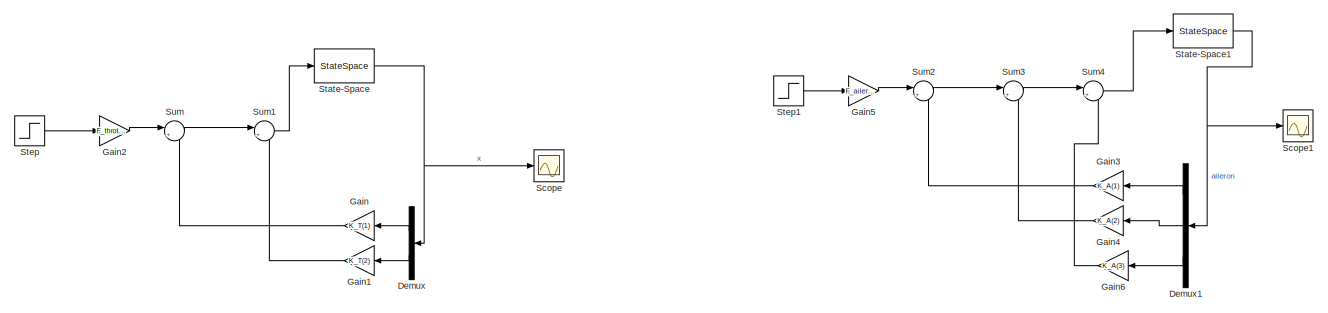
[diagram: root canvas - part 1/2, left side, full height]
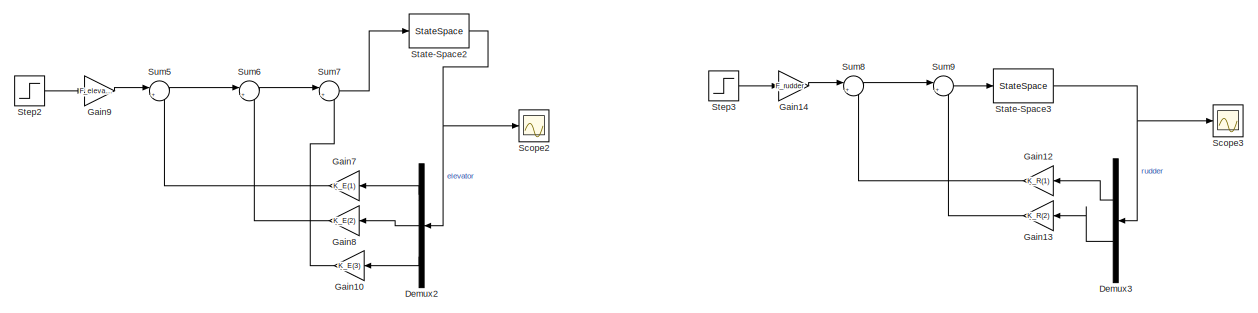
[diagram: root canvas - part 2/2, right side, full height]
MODEL slx_231699bf794b
KIND model
CONFIG AbsTol = auto
CONFIG EnableMultiTasking = off
CONFIG FixedStep = auto
CONFIG MaxStep = auto
CONFIG MinStep = auto
CONFIG RelTol = 1e-3
CONFIG SampleTimeConstraint = Unconstrained
CONFIG SolverName = VariableStepAuto
CONFIG StartTime = 0.0
CONFIG StopTime = 10.0
BLOCK [Demux] Demux
  Outputs = 2
  Ports = [1, 2]
BLOCK [Demux] Demux1
  Outputs = 3
  Ports = [1, 3]
BLOCK [Demux] Demux2
  Outputs = 3
  Ports = [1, 3]
BLOCK [Demux] Demux3
  Outputs = 2
  Ports = [1, 2]
BLOCK [Gain] Gain
  Gain = K_T(1)
BLOCK [Gain] Gain1
  Gain = K_T(2)
BLOCK [Gain] Gain10
  Gain = K_E(3)
BLOCK [Gain] Gain12
  Gain = K_R(1)
BLOCK [Gain] Gain13
  Gain = K_R(2)
BLOCK [Gain] Gain14
  Gain = F_rudder
BLOCK [Gain] Gain2
  Gain = F_throttle
BLOCK [Gain] Gain3
  Gain = K_A(1)
BLOCK [Gain] Gain4
  Gain = K_A(2)
BLOCK [Gain] Gain5
  Gain = F_aileron
BLOCK [Gain] Gain6
  Gain = K_A(3)
BLOCK [Gain] Gain7
  Gain = K_E(1)
BLOCK [Gain] Gain8
  Gain = K_E(2)
BLOCK [Gain] Gain9
  Gain = F_elevator
BLOCK [Scope] Scope
  Floating = off
  NumInputPorts = 1
  Ports = [1]
  ScopeSpecificationString = Simulink.scopes.TimeScopeBlockCfg('CurrentConfiguration', extmgr.ConfigurationSet(extmgr.Configuration('Core','General UI',true),extmgr.Configuration('Core','Source UI',true),extmgr.Configuration('Sources','WiredSimulink',true),extmgr.Configuration('Visuals','Time Domain',true,'SerializedDisplays',{struct('MinYLimReal','-0.12782','MaxYLimReal','1.15039','YLabelReal','','MinYLimMag','0.00000','MaxY...<+1358ch>
BLOCK [Scope] Scope1
  Floating = off
  NumInputPorts = 1
  Ports = [1]
  ScopeSpecificationString = Simulink.scopes.TimeScopeBlockCfg('CurrentConfiguration', extmgr.ConfigurationSet(extmgr.Configuration('Core','General UI',true),extmgr.Configuration('Core','Source UI',true),extmgr.Configuration('Sources','WiredSimulink',true,'DataLoggingVariableName','ScopeData1'),extmgr.Configuration('Visuals','Time Domain',true,'SerializedDisplays',{struct('MinYLimReal','-0.14925','MaxYLimReal','1.1074','YLabe...<+1417ch>
BLOCK [Scope] Scope2
  Floating = off
  NumInputPorts = 1
  Ports = [1]
  ScopeSpecificationString = Simulink.scopes.TimeScopeBlockCfg('CurrentConfiguration', extmgr.ConfigurationSet(extmgr.Configuration('Core','General UI',true),extmgr.Configuration('Core','Source UI',true),extmgr.Configuration('Sources','WiredSimulink',true,'DataLoggingVariableName','ScopeData2'),extmgr.Configuration('Visuals','Time Domain',true,'SerializedDisplays',{struct('MinYLimReal','-0.21784','MaxYLimReal','1.11502','YLab...<+1424ch>
BLOCK [Scope] Scope3
  Floating = off
  NumInputPorts = 1
  Ports = [1]
  ScopeSpecificationString = Simulink.scopes.TimeScopeBlockCfg('CurrentConfiguration', extmgr.ConfigurationSet(extmgr.Configuration('Core','General UI',true),extmgr.Configuration('Core','Source UI',true),extmgr.Configuration('Sources','WiredSimulink',true,'DataLoggingVariableName','ScopeData3'),extmgr.Configuration('Visuals','Time Domain',true,'SerializedDisplays',{struct('MinYLimReal','-0.12499','MaxYLimReal','1.1249','YLabe...<+1403ch>
BLOCK [StateSpace] State-Space
  A = A_throttle
  B = B_throttle
  C = [1,0;0,1]
  D = [0;0]
  InitialCondition = [0,0]
  Ports = [1, 1]
BLOCK [StateSpace] State-Space1
  A = A_aileron
  B = B_aileron
  C = [1,0,0;0,1,0;0,0,1]
  D = [0;0;0]
  InitialCondition = [0;0;0]
  Ports = [1, 1]
BLOCK [StateSpace] State-Space2
  A = A_elevator
  B = B_elevator
  C = [1,0,0;0,1,0;0,0,1]
  D = [0;0;0]
  InitialCondition = [0;0;0]
  Ports = [1, 1]
BLOCK [StateSpace] State-Space3
  A = A_rudder
  B = B_rudder
  C = [1,0;0,1]
  D = [0;0]
  InitialCondition = [0;0]
  Ports = [1, 1]
BLOCK [Step] Step
  SampleTime = 0
  Time = 5
BLOCK [Step] Step1
  SampleTime = 0
  Time = 5
BLOCK [Step] Step2
  SampleTime = 0
  Time = 5
BLOCK [Step] Step3
  SampleTime = 0
  Time = 5
BLOCK [Sum] Sum
  Inputs = |+-
  Ports = [2, 1]
BLOCK [Sum] Sum1
  Inputs = |+-
  Ports = [2, 1]
BLOCK [Sum] Sum2
  Inputs = |+-
  Ports = [2, 1]
BLOCK [Sum] Sum3
  Inputs = |+-
  Ports = [2, 1]
BLOCK [Sum] Sum4
  Inputs = |+-
  Ports = [2, 1]
BLOCK [Sum] Sum5
  Inputs = |+-
  Ports = [2, 1]
BLOCK [Sum] Sum6
  Inputs = |+-
  Ports = [2, 1]
BLOCK [Sum] Sum7
  Inputs = |+-
  Ports = [2, 1]
BLOCK [Sum] Sum8
  Inputs = |+-
  Ports = [2, 1]
BLOCK [Sum] Sum9
  Inputs = |+-
  Ports = [2, 1]
LINE Demux1:1 -> Gain3:1
LINE Demux1:2 -> Gain4:1
LINE Demux1:3 -> Gain6:1
LINE Demux2:1 -> Gain7:1
LINE Demux2:2 -> Gain8:1
LINE Demux2:3 -> Gain10:1
LINE Demux3:1 -> Gain12:1
LINE Demux3:2 -> Gain13:1
LINE Demux:1 -> Gain:1
LINE Demux:2 -> Gain1:1
LINE Gain10:1 -> Sum7:2
LINE Gain12:1 -> Sum8:2
LINE Gain13:1 -> Sum9:2
LINE Gain14:1 -> Sum8:1
LINE Gain1:1 -> Sum1:2
LINE Gain2:1 -> Sum:1
LINE Gain3:1 -> Sum2:2
LINE Gain4:1 -> Sum3:2
LINE Gain5:1 -> Sum2:1
LINE Gain6:1 -> Sum4:2
LINE Gain7:1 -> Sum5:2
LINE Gain8:1 -> Sum6:2
LINE Gain9:1 -> Sum5:1
LINE Gain:1 -> Sum:2
NET State-Space1:1 -> Demux1:1, Scope1:1
NET State-Space2:1 -> Demux2:1, Scope2:1
NET State-Space3:1 -> Demux3:1, Scope3:1
NET State-Space:1 -> Demux:1, Scope:1
LINE Step1:1 -> Gain5:1
LINE Step2:1 -> Gain9:1
LINE Step3:1 -> Gain14:1
LINE Step:1 -> Gain2:1
LINE Sum1:1 -> State-Space:1
LINE Sum2:1 -> Sum3:1
LINE Sum3:1 -> Sum4:1
LINE Sum4:1 -> State-Space1:1
LINE Sum5:1 -> Sum6:1
LINE Sum6:1 -> Sum7:1
LINE Sum7:1 -> State-Space2:1
LINE Sum8:1 -> Sum9:1
LINE Sum9:1 -> State-Space3:1
LINE Sum:1 -> Sum1:1
note: NET lines group one-source signal fan-out (src -> all destinations, sorted); 1:1 wires keep LINE
